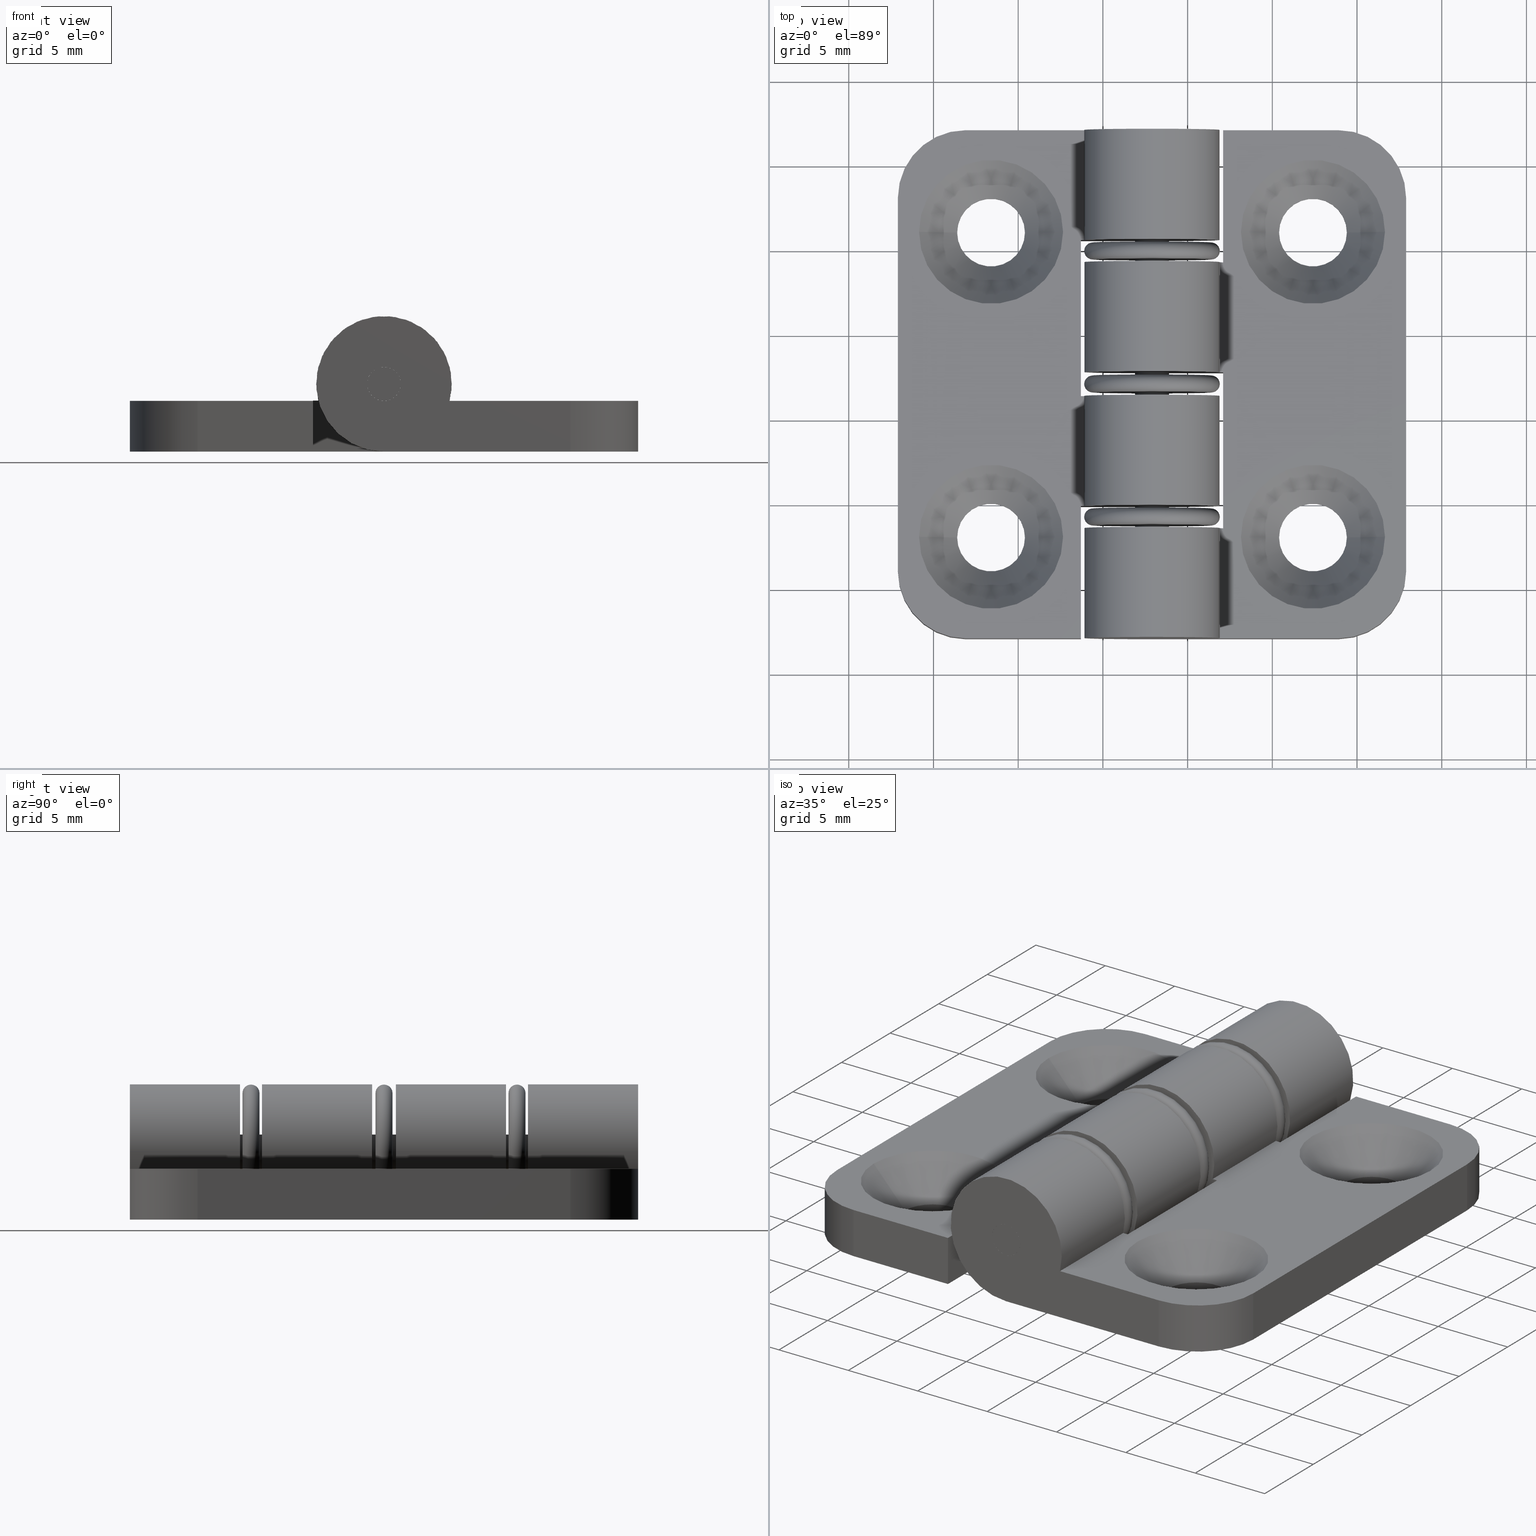
[diagram: canonical four-view strip — front | top / right | iso, engineering-drawing reading convention]
A machine part, canonical four-view strip (front | top / right | iso — engineering-drawing reading convention). The complete STEP part file that produces these views, byte-faithful:
ISO-10303-21;
HEADER;
/* Generated by software containing ST-Developer
 * from STEP Tools, Inc. (www.steptools.com) 
 */

FILE_DESCRIPTION(
/* description */ (''),
/* implementation_level */ '2;1');

FILE_NAME(
/* name */ '\\\\SYNOLOGYNAS\\web\\db2\\HC3030\\\X2\B3C4BA74\X0\\\DR_HC
3030.stp',
/* time_stamp */ '2024-09-06T18:13:24+09:00',
/* author */ ('user'),
/* organization */ (''),
/* preprocessor_version */ 'ST-DEVELOPER v15.6',
/* originating_system */ 'Autodesk Inventor 2015',
/* authorisation */ '');

FILE_SCHEMA (('AUTOMOTIVE_DESIGN { 1 0 10303 214 3 1 1 }'));
ENDSEC;

DATA;
#10=MECHANICAL_DESIGN_GEOMETRIC_PRESENTATION_REPRESENTATION('',(#99,#100,
#101),#821);
#11=ITEM_DEFINED_TRANSFORMATION($,$,#472,#527);
#12=ITEM_DEFINED_TRANSFORMATION($,$,#481,#528);
#13=ITEM_DEFINED_TRANSFORMATION($,$,#472,#529);
#14=ITEM_DEFINED_TRANSFORMATION($,$,#481,#530);
#15=ITEM_DEFINED_TRANSFORMATION($,$,#472,#531);
#16=ITEM_DEFINED_TRANSFORMATION($,$,#520,#532);
#17=(
REPRESENTATION_RELATIONSHIP($,$,#842,#845)
REPRESENTATION_RELATIONSHIP_WITH_TRANSFORMATION(#11)
SHAPE_REPRESENTATION_RELATIONSHIP()
);
#18=(
REPRESENTATION_RELATIONSHIP($,$,#843,#845)
REPRESENTATION_RELATIONSHIP_WITH_TRANSFORMATION(#12)
SHAPE_REPRESENTATION_RELATIONSHIP()
);
#19=(
REPRESENTATION_RELATIONSHIP($,$,#842,#845)
REPRESENTATION_RELATIONSHIP_WITH_TRANSFORMATION(#13)
SHAPE_REPRESENTATION_RELATIONSHIP()
);
#20=(
REPRESENTATION_RELATIONSHIP($,$,#843,#845)
REPRESENTATION_RELATIONSHIP_WITH_TRANSFORMATION(#14)
SHAPE_REPRESENTATION_RELATIONSHIP()
);
#21=(
REPRESENTATION_RELATIONSHIP($,$,#842,#845)
REPRESENTATION_RELATIONSHIP_WITH_TRANSFORMATION(#15)
SHAPE_REPRESENTATION_RELATIONSHIP()
);
#22=(
REPRESENTATION_RELATIONSHIP($,$,#844,#845)
REPRESENTATION_RELATIONSHIP_WITH_TRANSFORMATION(#16)
SHAPE_REPRESENTATION_RELATIONSHIP()
);
#23=CONTEXT_DEPENDENT_SHAPE_REPRESENTATION(#17,#836);
#24=CONTEXT_DEPENDENT_SHAPE_REPRESENTATION(#18,#837);
#25=CONTEXT_DEPENDENT_SHAPE_REPRESENTATION(#19,#838);
#26=CONTEXT_DEPENDENT_SHAPE_REPRESENTATION(#20,#839);
#27=CONTEXT_DEPENDENT_SHAPE_REPRESENTATION(#21,#840);
#28=CONTEXT_DEPENDENT_SHAPE_REPRESENTATION(#22,#841);
#29=NEXT_ASSEMBLY_USAGE_OCCURRENCE('DR_HC3030-\X2\C640C154\X0\:1',$,$,#850,
#847,$);
#30=NEXT_ASSEMBLY_USAGE_OCCURRENCE('DR_HC3030:1',$,$,#850,#848,$);
#31=NEXT_ASSEMBLY_USAGE_OCCURRENCE('DR_HC3030-\X2\C640C154\X0\:2',$,$,#850,
#847,$);
#32=NEXT_ASSEMBLY_USAGE_OCCURRENCE('DR_HC3030:2',$,$,#850,#848,$);
#33=NEXT_ASSEMBLY_USAGE_OCCURRENCE('DR_HC3030-\X2\C640C154\X0\:3',$,$,#850,
#847,$);
#34=NEXT_ASSEMBLY_USAGE_OCCURRENCE('DR_HC3030-\X2\D540\X0\:1',$,$,#850,
#849,$);
#35=CONICAL_SURFACE('',#508,3.125,42.5);
#36=CONICAL_SURFACE('',#512,3.125,42.5);
#37=LINE('',#700,#65);
#38=LINE('',#702,#66);
#39=LINE('',#704,#67);
#40=LINE('',#705,#68);
#41=LINE('',#708,#69);
#42=LINE('',#710,#70);
#43=LINE('',#716,#71);
#44=LINE('',#719,#72);
#45=LINE('',#725,#73);
#46=LINE('',#727,#74);
#47=LINE('',#729,#75);
#48=LINE('',#735,#76);
#49=LINE('',#737,#77);
#50=LINE('',#738,#78);
#51=LINE('',#741,#79);
#52=LINE('',#743,#80);
#53=LINE('',#747,#81);
#54=LINE('',#750,#82);
#55=LINE('',#751,#83);
#56=LINE('',#758,#84);
#57=LINE('',#761,#85);
#58=LINE('',#769,#86);
#59=LINE('',#770,#87);
#60=LINE('',#773,#88);
#61=LINE('',#774,#89);
#62=LINE('',#778,#90);
#63=LINE('',#793,#91);
#64=LINE('',#794,#92);
#65=VECTOR('',#555,9.2);
#66=VECTOR('',#556,3.);
#67=VECTOR('',#557,9.2);
#68=VECTOR('',#558,3.);
#69=VECTOR('',#561,0.327016653792582);
#70=VECTOR('',#562,4.2);
#71=VECTOR('',#569,0.327016653792584);
#72=VECTOR('',#572,4.2);
#73=VECTOR('',#577,0.327016653792582);
#74=VECTOR('',#578,3.);
#75=VECTOR('',#579,4.2);
#76=VECTOR('',#586,7.79999999999999);
#77=VECTOR('',#587,3.);
#78=VECTOR('',#588,7.79999999999999);
#79=VECTOR('',#591,6.5);
#80=VECTOR('',#592,7.12701665379258);
#81=VECTOR('',#595,22.);
#82=VECTOR('',#598,6.8);
#83=VECTOR('',#599,6.5);
#84=VECTOR('',#606,6.5);
#85=VECTOR('',#611,6.5);
#86=VECTOR('',#620,3.);
#87=VECTOR('',#621,3.);
#88=VECTOR('',#624,3.);
#89=VECTOR('',#625,22.);
#90=VECTOR('',#630,3.);
#91=VECTOR('',#651,6.8);
#92=VECTOR('',#652,11.);
#93=SHAPE_REPRESENTATION_RELATIONSHIP('SRR','None',#842,#96);
#94=SHAPE_REPRESENTATION_RELATIONSHIP('SRR','None',#843,#97);
#95=SHAPE_REPRESENTATION_RELATIONSHIP('SRR','None',#844,#98);
#96=ADVANCED_BREP_SHAPE_REPRESENTATION($,(#102),#817);
#97=ADVANCED_BREP_SHAPE_REPRESENTATION($,(#103),#818);
#98=ADVANCED_BREP_SHAPE_REPRESENTATION($,(#104),#819);
#99=STYLED_ITEM('',(#867),#102);
#100=STYLED_ITEM('',(#868),#103);
#101=STYLED_ITEM('',(#869),#104);
#102=MANIFOLD_SOLID_BREP('\X2\C194B9ACB4DC\X0\1',#469);
#103=MANIFOLD_SOLID_BREP('\X2\C194B9ACB4DC\X0\1',#470);
#104=MANIFOLD_SOLID_BREP('\X2\C194B9ACB4DC\X0\1',#471);
#105=CYLINDRICAL_SURFACE('',#480,1.);
#106=CYLINDRICAL_SURFACE('',#498,4.);
#107=CYLINDRICAL_SURFACE('',#500,4.);
#108=CYLINDRICAL_SURFACE('',#501,1.);
#109=CYLINDRICAL_SURFACE('',#503,4.);
#110=CYLINDRICAL_SURFACE('',#506,4.);
#111=CYLINDRICAL_SURFACE('',#510,2.);
#112=CYLINDRICAL_SURFACE('',#514,2.);
#113=CYLINDRICAL_SURFACE('',#516,1.);
#114=CYLINDRICAL_SURFACE('',#523,1.);
#115=TOROIDAL_SURFACE('',#476,3.5,0.5);
#116=FACE_BOUND('',#163,.T.);
#117=FACE_BOUND('',#165,.T.);
#118=FACE_BOUND('',#167,.T.);
#119=FACE_BOUND('',#169,.T.);
#120=FACE_BOUND('',#172,.T.);
#121=FACE_BOUND('',#174,.T.);
#122=FACE_BOUND('',#176,.T.);
#123=FACE_BOUND('',#179,.T.);
#124=FACE_BOUND('',#180,.T.);
#125=FACE_BOUND('',#184,.T.);
#126=FACE_BOUND('',#189,.T.);
#127=FACE_BOUND('',#191,.T.);
#128=FACE_BOUND('',#193,.T.);
#129=FACE_BOUND('',#195,.T.);
#130=FACE_BOUND('',#197,.T.);
#131=FACE_BOUND('',#199,.T.);
#132=FACE_BOUND('',#200,.T.);
#133=FACE_BOUND('',#203,.T.);
#134=FACE_BOUND('',#206,.T.);
#135=FACE_OUTER_BOUND('',#162,.T.);
#136=FACE_OUTER_BOUND('',#164,.T.);
#137=FACE_OUTER_BOUND('',#166,.T.);
#138=FACE_OUTER_BOUND('',#168,.T.);
#139=FACE_OUTER_BOUND('',#170,.T.);
#140=FACE_OUTER_BOUND('',#171,.T.);
#141=FACE_OUTER_BOUND('',#173,.T.);
#142=FACE_OUTER_BOUND('',#175,.T.);
#143=FACE_OUTER_BOUND('',#177,.T.);
#144=FACE_OUTER_BOUND('',#178,.T.);
#145=FACE_OUTER_BOUND('',#181,.T.);
#146=FACE_OUTER_BOUND('',#182,.T.);
#147=FACE_OUTER_BOUND('',#183,.T.);
#148=FACE_OUTER_BOUND('',#185,.T.);
#149=FACE_OUTER_BOUND('',#186,.T.);
#150=FACE_OUTER_BOUND('',#187,.T.);
#151=FACE_OUTER_BOUND('',#188,.T.);
#152=FACE_OUTER_BOUND('',#190,.T.);
#153=FACE_OUTER_BOUND('',#192,.T.);
#154=FACE_OUTER_BOUND('',#194,.T.);
#155=FACE_OUTER_BOUND('',#196,.T.);
#156=FACE_OUTER_BOUND('',#198,.T.);
#157=FACE_OUTER_BOUND('',#201,.T.);
#158=FACE_OUTER_BOUND('',#202,.T.);
#159=FACE_OUTER_BOUND('',#204,.T.);
#160=FACE_OUTER_BOUND('',#205,.T.);
#161=FACE_OUTER_BOUND('',#207,.T.);
#162=EDGE_LOOP('',(#324));
#163=EDGE_LOOP('',(#325));
#164=EDGE_LOOP('',(#326));
#165=EDGE_LOOP('',(#327));
#166=EDGE_LOOP('',(#328));
#167=EDGE_LOOP('',(#329));
#168=EDGE_LOOP('',(#330));
#169=EDGE_LOOP('',(#331));
#170=EDGE_LOOP('',(#332,#333,#334,#335));
#171=EDGE_LOOP('',(#336,#337,#338,#339));
#172=EDGE_LOOP('',(#340));
#173=EDGE_LOOP('',(#341,#342,#343,#344));
#174=EDGE_LOOP('',(#345));
#175=EDGE_LOOP('',(#346,#347,#348,#349));
#176=EDGE_LOOP('',(#350));
#177=EDGE_LOOP('',(#351,#352,#353,#354));
#178=EDGE_LOOP('',(#355,#356,#357,#358,#359,#360,#361,#362,#363,#364,#365,
#366));
#179=EDGE_LOOP('',(#367));
#180=EDGE_LOOP('',(#368));
#181=EDGE_LOOP('',(#369,#370,#371,#372));
#182=EDGE_LOOP('',(#373,#374,#375,#376));
#183=EDGE_LOOP('',(#377));
#184=EDGE_LOOP('',(#378));
#185=EDGE_LOOP('',(#379,#380,#381,#382));
#186=EDGE_LOOP('',(#383,#384,#385,#386));
#187=EDGE_LOOP('',(#387,#388,#389,#390));
#188=EDGE_LOOP('',(#391));
#189=EDGE_LOOP('',(#392));
#190=EDGE_LOOP('',(#393));
#191=EDGE_LOOP('',(#394));
#192=EDGE_LOOP('',(#395));
#193=EDGE_LOOP('',(#396));
#194=EDGE_LOOP('',(#397));
#195=EDGE_LOOP('',(#398));
#196=EDGE_LOOP('',(#399));
#197=EDGE_LOOP('',(#400));
#198=EDGE_LOOP('',(#401,#402,#403,#404,#405,#406,#407,#408,#409,#410,#411,
#412));
#199=EDGE_LOOP('',(#413));
#200=EDGE_LOOP('',(#414));
#201=EDGE_LOOP('',(#415,#416,#417,#418));
#202=EDGE_LOOP('',(#419,#420,#421,#422));
#203=EDGE_LOOP('',(#423));
#204=EDGE_LOOP('',(#424));
#205=EDGE_LOOP('',(#425));
#206=EDGE_LOOP('',(#426));
#207=EDGE_LOOP('',(#427));
#208=CIRCLE('',#474,3.5);
#209=CIRCLE('',#475,1.);
#210=CIRCLE('',#477,3.5);
#211=CIRCLE('',#479,1.);
#212=CIRCLE('',#484,4.);
#213=CIRCLE('',#485,1.);
#214=CIRCLE('',#487,4.);
#215=CIRCLE('',#488,1.);
#216=CIRCLE('',#490,4.);
#217=CIRCLE('',#491,1.);
#218=CIRCLE('',#494,4.);
#219=CIRCLE('',#495,4.);
#220=CIRCLE('',#496,4.25);
#221=CIRCLE('',#497,4.25);
#222=CIRCLE('',#499,4.);
#223=CIRCLE('',#502,1.);
#224=CIRCLE('',#504,4.);
#225=CIRCLE('',#507,4.);
#226=CIRCLE('',#509,2.);
#227=CIRCLE('',#511,2.);
#228=CIRCLE('',#513,2.);
#229=CIRCLE('',#515,2.);
#230=CIRCLE('',#522,1.);
#231=CIRCLE('',#524,1.);
#232=VERTEX_POINT('',#685);
#233=VERTEX_POINT('',#687);
#234=VERTEX_POINT('',#690);
#235=VERTEX_POINT('',#693);
#236=VERTEX_POINT('',#698);
#237=VERTEX_POINT('',#699);
#238=VERTEX_POINT('',#701);
#239=VERTEX_POINT('',#703);
#240=VERTEX_POINT('',#707);
#241=VERTEX_POINT('',#709);
#242=VERTEX_POINT('',#712);
#243=VERTEX_POINT('',#715);
#244=VERTEX_POINT('',#717);
#245=VERTEX_POINT('',#720);
#246=VERTEX_POINT('',#723);
#247=VERTEX_POINT('',#724);
#248=VERTEX_POINT('',#726);
#249=VERTEX_POINT('',#728);
#250=VERTEX_POINT('',#731);
#251=VERTEX_POINT('',#734);
#252=VERTEX_POINT('',#736);
#253=VERTEX_POINT('',#740);
#254=VERTEX_POINT('',#742);
#255=VERTEX_POINT('',#744);
#256=VERTEX_POINT('',#746);
#257=VERTEX_POINT('',#748);
#258=VERTEX_POINT('',#752);
#259=VERTEX_POINT('',#754);
#260=VERTEX_POINT('',#757);
#261=VERTEX_POINT('',#763);
#262=VERTEX_POINT('',#766);
#263=VERTEX_POINT('',#767);
#264=VERTEX_POINT('',#772);
#265=VERTEX_POINT('',#776);
#266=VERTEX_POINT('',#780);
#267=VERTEX_POINT('',#783);
#268=VERTEX_POINT('',#786);
#269=VERTEX_POINT('',#789);
#270=VERTEX_POINT('',#799);
#271=VERTEX_POINT('',#802);
#272=EDGE_CURVE('',#232,#232,#208,.T.);
#273=EDGE_CURVE('',#233,#233,#209,.T.);
#274=EDGE_CURVE('',#234,#234,#210,.T.);
#275=EDGE_CURVE('',#235,#235,#211,.T.);
#276=EDGE_CURVE('',#236,#237,#37,.T.);
#277=EDGE_CURVE('',#238,#236,#38,.T.);
#278=EDGE_CURVE('',#239,#238,#39,.T.);
#279=EDGE_CURVE('',#237,#239,#40,.T.);
#280=EDGE_CURVE('',#237,#240,#41,.T.);
#281=EDGE_CURVE('',#241,#239,#42,.T.);
#282=EDGE_CURVE('',#240,#241,#212,.T.);
#283=EDGE_CURVE('',#242,#242,#213,.T.);
#284=EDGE_CURVE('',#243,#236,#43,.T.);
#285=EDGE_CURVE('',#244,#243,#214,.T.);
#286=EDGE_CURVE('',#238,#244,#44,.T.);
#287=EDGE_CURVE('',#245,#245,#215,.T.);
#288=EDGE_CURVE('',#246,#247,#45,.T.);
#289=EDGE_CURVE('',#246,#248,#46,.T.);
#290=EDGE_CURVE('',#249,#248,#47,.T.);
#291=EDGE_CURVE('',#247,#249,#216,.T.);
#292=EDGE_CURVE('',#250,#250,#217,.T.);
#293=EDGE_CURVE('',#251,#246,#48,.T.);
#294=EDGE_CURVE('',#252,#251,#49,.T.);
#295=EDGE_CURVE('',#248,#252,#50,.T.);
#296=EDGE_CURVE('',#253,#240,#51,.T.);
#297=EDGE_CURVE('',#253,#254,#52,.T.);
#298=EDGE_CURVE('',#255,#254,#218,.T.);
#299=EDGE_CURVE('',#255,#256,#53,.T.);
#300=EDGE_CURVE('',#257,#256,#219,.T.);
#301=EDGE_CURVE('',#251,#257,#54,.T.);
#302=EDGE_CURVE('',#243,#247,#55,.T.);
#303=EDGE_CURVE('',#258,#258,#220,.T.);
#304=EDGE_CURVE('',#259,#259,#221,.T.);
#305=EDGE_CURVE('',#260,#241,#56,.T.);
#306=EDGE_CURVE('',#260,#253,#222,.T.);
#307=EDGE_CURVE('',#244,#249,#57,.T.);
#308=EDGE_CURVE('',#261,#261,#223,.T.);
#309=EDGE_CURVE('',#262,#263,#224,.T.);
#310=EDGE_CURVE('',#263,#257,#58,.T.);
#311=EDGE_CURVE('',#256,#262,#59,.T.);
#312=EDGE_CURVE('',#264,#255,#60,.T.);
#313=EDGE_CURVE('',#264,#262,#61,.T.);
#314=EDGE_CURVE('',#265,#264,#225,.T.);
#315=EDGE_CURVE('',#254,#265,#62,.T.);
#316=EDGE_CURVE('',#266,#266,#226,.T.);
#317=EDGE_CURVE('',#267,#267,#227,.T.);
#318=EDGE_CURVE('',#268,#268,#228,.T.);
#319=EDGE_CURVE('',#269,#269,#229,.T.);
#320=EDGE_CURVE('',#263,#252,#63,.T.);
#321=EDGE_CURVE('',#265,#260,#64,.T.);
#322=EDGE_CURVE('',#270,#270,#230,.T.);
#323=EDGE_CURVE('',#271,#271,#231,.T.);
#324=ORIENTED_EDGE('',*,*,#272,.F.);
#325=ORIENTED_EDGE('',*,*,#273,.T.);
#326=ORIENTED_EDGE('',*,*,#272,.T.);
#327=ORIENTED_EDGE('',*,*,#274,.T.);
#328=ORIENTED_EDGE('',*,*,#274,.F.);
#329=ORIENTED_EDGE('',*,*,#275,.T.);
#330=ORIENTED_EDGE('',*,*,#275,.F.);
#331=ORIENTED_EDGE('',*,*,#273,.F.);
#332=ORIENTED_EDGE('',*,*,#276,.F.);
#333=ORIENTED_EDGE('',*,*,#277,.F.);
#334=ORIENTED_EDGE('',*,*,#278,.F.);
#335=ORIENTED_EDGE('',*,*,#279,.F.);
#336=ORIENTED_EDGE('',*,*,#280,.F.);
#337=ORIENTED_EDGE('',*,*,#279,.T.);
#338=ORIENTED_EDGE('',*,*,#281,.F.);
#339=ORIENTED_EDGE('',*,*,#282,.F.);
#340=ORIENTED_EDGE('',*,*,#283,.F.);
#341=ORIENTED_EDGE('',*,*,#284,.F.);
#342=ORIENTED_EDGE('',*,*,#285,.F.);
#343=ORIENTED_EDGE('',*,*,#286,.F.);
#344=ORIENTED_EDGE('',*,*,#277,.T.);
#345=ORIENTED_EDGE('',*,*,#287,.F.);
#346=ORIENTED_EDGE('',*,*,#288,.F.);
#347=ORIENTED_EDGE('',*,*,#289,.T.);
#348=ORIENTED_EDGE('',*,*,#290,.F.);
#349=ORIENTED_EDGE('',*,*,#291,.F.);
#350=ORIENTED_EDGE('',*,*,#292,.F.);
#351=ORIENTED_EDGE('',*,*,#293,.F.);
#352=ORIENTED_EDGE('',*,*,#294,.F.);
#353=ORIENTED_EDGE('',*,*,#295,.F.);
#354=ORIENTED_EDGE('',*,*,#289,.F.);
#355=ORIENTED_EDGE('',*,*,#284,.T.);
#356=ORIENTED_EDGE('',*,*,#276,.T.);
#357=ORIENTED_EDGE('',*,*,#280,.T.);
#358=ORIENTED_EDGE('',*,*,#296,.F.);
#359=ORIENTED_EDGE('',*,*,#297,.T.);
#360=ORIENTED_EDGE('',*,*,#298,.F.);
#361=ORIENTED_EDGE('',*,*,#299,.T.);
#362=ORIENTED_EDGE('',*,*,#300,.F.);
#363=ORIENTED_EDGE('',*,*,#301,.F.);
#364=ORIENTED_EDGE('',*,*,#293,.T.);
#365=ORIENTED_EDGE('',*,*,#288,.T.);
#366=ORIENTED_EDGE('',*,*,#302,.F.);
#367=ORIENTED_EDGE('',*,*,#303,.T.);
#368=ORIENTED_EDGE('',*,*,#304,.T.);
#369=ORIENTED_EDGE('',*,*,#282,.T.);
#370=ORIENTED_EDGE('',*,*,#305,.F.);
#371=ORIENTED_EDGE('',*,*,#306,.T.);
#372=ORIENTED_EDGE('',*,*,#296,.T.);
#373=ORIENTED_EDGE('',*,*,#285,.T.);
#374=ORIENTED_EDGE('',*,*,#302,.T.);
#375=ORIENTED_EDGE('',*,*,#291,.T.);
#376=ORIENTED_EDGE('',*,*,#307,.F.);
#377=ORIENTED_EDGE('',*,*,#308,.F.);
#378=ORIENTED_EDGE('',*,*,#283,.T.);
#379=ORIENTED_EDGE('',*,*,#309,.T.);
#380=ORIENTED_EDGE('',*,*,#310,.T.);
#381=ORIENTED_EDGE('',*,*,#300,.T.);
#382=ORIENTED_EDGE('',*,*,#311,.T.);
#383=ORIENTED_EDGE('',*,*,#311,.F.);
#384=ORIENTED_EDGE('',*,*,#299,.F.);
#385=ORIENTED_EDGE('',*,*,#312,.F.);
#386=ORIENTED_EDGE('',*,*,#313,.T.);
#387=ORIENTED_EDGE('',*,*,#314,.T.);
#388=ORIENTED_EDGE('',*,*,#312,.T.);
#389=ORIENTED_EDGE('',*,*,#298,.T.);
#390=ORIENTED_EDGE('',*,*,#315,.T.);
#391=ORIENTED_EDGE('',*,*,#304,.F.);
#392=ORIENTED_EDGE('',*,*,#316,.F.);
#393=ORIENTED_EDGE('',*,*,#317,.F.);
#394=ORIENTED_EDGE('',*,*,#316,.T.);
#395=ORIENTED_EDGE('',*,*,#303,.F.);
#396=ORIENTED_EDGE('',*,*,#318,.F.);
#397=ORIENTED_EDGE('',*,*,#319,.F.);
#398=ORIENTED_EDGE('',*,*,#318,.T.);
#399=ORIENTED_EDGE('',*,*,#287,.T.);
#400=ORIENTED_EDGE('',*,*,#292,.T.);
#401=ORIENTED_EDGE('',*,*,#286,.T.);
#402=ORIENTED_EDGE('',*,*,#307,.T.);
#403=ORIENTED_EDGE('',*,*,#290,.T.);
#404=ORIENTED_EDGE('',*,*,#295,.T.);
#405=ORIENTED_EDGE('',*,*,#320,.F.);
#406=ORIENTED_EDGE('',*,*,#309,.F.);
#407=ORIENTED_EDGE('',*,*,#313,.F.);
#408=ORIENTED_EDGE('',*,*,#314,.F.);
#409=ORIENTED_EDGE('',*,*,#321,.T.);
#410=ORIENTED_EDGE('',*,*,#305,.T.);
#411=ORIENTED_EDGE('',*,*,#281,.T.);
#412=ORIENTED_EDGE('',*,*,#278,.T.);
#413=ORIENTED_EDGE('',*,*,#317,.T.);
#414=ORIENTED_EDGE('',*,*,#319,.T.);
#415=ORIENTED_EDGE('',*,*,#294,.T.);
#416=ORIENTED_EDGE('',*,*,#301,.T.);
#417=ORIENTED_EDGE('',*,*,#310,.F.);
#418=ORIENTED_EDGE('',*,*,#320,.T.);
#419=ORIENTED_EDGE('',*,*,#315,.F.);
#420=ORIENTED_EDGE('',*,*,#297,.F.);
#421=ORIENTED_EDGE('',*,*,#306,.F.);
#422=ORIENTED_EDGE('',*,*,#321,.F.);
#423=ORIENTED_EDGE('',*,*,#308,.T.);
#424=ORIENTED_EDGE('',*,*,#322,.F.);
#425=ORIENTED_EDGE('',*,*,#323,.F.);
#426=ORIENTED_EDGE('',*,*,#322,.T.);
#427=ORIENTED_EDGE('',*,*,#323,.T.);
#428=PLANE('',#473);
#429=PLANE('',#478);
#430=PLANE('',#482);
#431=PLANE('',#483);
#432=PLANE('',#486);
#433=PLANE('',#489);
#434=PLANE('',#492);
#435=PLANE('',#493);
#436=PLANE('',#505);
#437=PLANE('',#517);
#438=PLANE('',#518);
#439=PLANE('',#519);
#440=PLANE('',#521);
#441=PLANE('',#525);
#442=ADVANCED_FACE('',(#135,#116),#428,.F.);
#443=ADVANCED_FACE('',(#136,#117),#115,.T.);
#444=ADVANCED_FACE('',(#137,#118),#429,.T.);
#445=ADVANCED_FACE('',(#138,#119),#105,.F.);
#446=ADVANCED_FACE('',(#139),#430,.F.);
#447=ADVANCED_FACE('',(#140,#120),#431,.F.);
#448=ADVANCED_FACE('',(#141,#121),#432,.T.);
#449=ADVANCED_FACE('',(#142,#122),#433,.T.);
#450=ADVANCED_FACE('',(#143),#434,.F.);
#451=ADVANCED_FACE('',(#144,#123,#124),#435,.T.);
#452=ADVANCED_FACE('',(#145),#106,.T.);
#453=ADVANCED_FACE('',(#146),#107,.T.);
#454=ADVANCED_FACE('',(#147,#125),#108,.F.);
#455=ADVANCED_FACE('',(#148),#109,.T.);
#456=ADVANCED_FACE('',(#149),#436,.T.);
#457=ADVANCED_FACE('',(#150),#110,.T.);
#458=ADVANCED_FACE('',(#151,#126),#35,.F.);
#459=ADVANCED_FACE('',(#152,#127),#111,.F.);
#460=ADVANCED_FACE('',(#153,#128),#36,.F.);
#461=ADVANCED_FACE('',(#154,#129),#112,.F.);
#462=ADVANCED_FACE('',(#155,#130),#113,.F.);
#463=ADVANCED_FACE('',(#156,#131,#132),#437,.T.);
#464=ADVANCED_FACE('',(#157),#438,.T.);
#465=ADVANCED_FACE('',(#158,#133),#439,.F.);
#466=ADVANCED_FACE('',(#159),#440,.T.);
#467=ADVANCED_FACE('',(#160,#134),#114,.T.);
#468=ADVANCED_FACE('',(#161),#441,.T.);
#469=CLOSED_SHELL('',(#442,#443,#444,#445));
#470=CLOSED_SHELL('',(#446,#447,#448,#449,#450,#451,#452,#453,#454,#455,
#456,#457,#458,#459,#460,#461,#462,#463,#464,#465));
#471=CLOSED_SHELL('',(#466,#467,#468));
#472=AXIS2_PLACEMENT_3D('placement',#683,#533,#534);
#473=AXIS2_PLACEMENT_3D('',#684,#535,#536);
#474=AXIS2_PLACEMENT_3D('',#686,#537,#538);
#475=AXIS2_PLACEMENT_3D('',#688,#539,#540);
#476=AXIS2_PLACEMENT_3D('',#689,#541,#542);
#477=AXIS2_PLACEMENT_3D('',#691,#543,#544);
#478=AXIS2_PLACEMENT_3D('',#692,#545,#546);
#479=AXIS2_PLACEMENT_3D('',#694,#547,#548);
#480=AXIS2_PLACEMENT_3D('',#695,#549,#550);
#481=AXIS2_PLACEMENT_3D('placement',#696,#551,#552);
#482=AXIS2_PLACEMENT_3D('',#697,#553,#554);
#483=AXIS2_PLACEMENT_3D('',#706,#559,#560);
#484=AXIS2_PLACEMENT_3D('',#711,#563,#564);
#485=AXIS2_PLACEMENT_3D('',#713,#565,#566);
#486=AXIS2_PLACEMENT_3D('',#714,#567,#568);
#487=AXIS2_PLACEMENT_3D('',#718,#570,#571);
#488=AXIS2_PLACEMENT_3D('',#721,#573,#574);
#489=AXIS2_PLACEMENT_3D('',#722,#575,#576);
#490=AXIS2_PLACEMENT_3D('',#730,#580,#581);
#491=AXIS2_PLACEMENT_3D('',#732,#582,#583);
#492=AXIS2_PLACEMENT_3D('',#733,#584,#585);
#493=AXIS2_PLACEMENT_3D('',#739,#589,#590);
#494=AXIS2_PLACEMENT_3D('',#745,#593,#594);
#495=AXIS2_PLACEMENT_3D('',#749,#596,#597);
#496=AXIS2_PLACEMENT_3D('',#753,#600,#601);
#497=AXIS2_PLACEMENT_3D('',#755,#602,#603);
#498=AXIS2_PLACEMENT_3D('',#756,#604,#605);
#499=AXIS2_PLACEMENT_3D('',#759,#607,#608);
#500=AXIS2_PLACEMENT_3D('',#760,#609,#610);
#501=AXIS2_PLACEMENT_3D('',#762,#612,#613);
#502=AXIS2_PLACEMENT_3D('',#764,#614,#615);
#503=AXIS2_PLACEMENT_3D('',#765,#616,#617);
#504=AXIS2_PLACEMENT_3D('',#768,#618,#619);
#505=AXIS2_PLACEMENT_3D('',#771,#622,#623);
#506=AXIS2_PLACEMENT_3D('',#775,#626,#627);
#507=AXIS2_PLACEMENT_3D('',#777,#628,#629);
#508=AXIS2_PLACEMENT_3D('',#779,#631,#632);
#509=AXIS2_PLACEMENT_3D('',#781,#633,#634);
#510=AXIS2_PLACEMENT_3D('',#782,#635,#636);
#511=AXIS2_PLACEMENT_3D('',#784,#637,#638);
#512=AXIS2_PLACEMENT_3D('',#785,#639,#640);
#513=AXIS2_PLACEMENT_3D('',#787,#641,#642);
#514=AXIS2_PLACEMENT_3D('',#788,#643,#644);
#515=AXIS2_PLACEMENT_3D('',#790,#645,#646);
#516=AXIS2_PLACEMENT_3D('',#791,#647,#648);
#517=AXIS2_PLACEMENT_3D('',#792,#649,#650);
#518=AXIS2_PLACEMENT_3D('',#795,#653,#654);
#519=AXIS2_PLACEMENT_3D('',#796,#655,#656);
#520=AXIS2_PLACEMENT_3D('placement',#797,#657,#658);
#521=AXIS2_PLACEMENT_3D('',#798,#659,#660);
#522=AXIS2_PLACEMENT_3D('',#800,#661,#662);
#523=AXIS2_PLACEMENT_3D('',#801,#663,#664);
#524=AXIS2_PLACEMENT_3D('',#803,#665,#666);
#525=AXIS2_PLACEMENT_3D('',#804,#667,#668);
#526=AXIS2_PLACEMENT_3D('placement',#805,#669,#670);
#527=AXIS2_PLACEMENT_3D('',#806,#671,#672);
#528=AXIS2_PLACEMENT_3D('',#807,#673,#674);
#529=AXIS2_PLACEMENT_3D('',#808,#675,#676);
#530=AXIS2_PLACEMENT_3D('',#809,#677,#678);
#531=AXIS2_PLACEMENT_3D('',#810,#679,#680);
#532=AXIS2_PLACEMENT_3D('',#811,#681,#682);
#533=DIRECTION('axis',(0.,0.,1.));
#534=DIRECTION('refdir',(1.,0.,0.));
#535=DIRECTION('center_axis',(0.,1.,0.));
#536=DIRECTION('ref_axis',(0.,0.,1.));
#537=DIRECTION('center_axis',(0.,1.,0.));
#538=DIRECTION('ref_axis',(1.,0.,0.));
#539=DIRECTION('center_axis',(0.,1.,0.));
#540=DIRECTION('ref_axis',(1.,0.,0.));
#541=DIRECTION('center_axis',(0.,1.,0.));
#542=DIRECTION('ref_axis',(0.,0.,1.));
#543=DIRECTION('center_axis',(0.,-1.,0.));
#544=DIRECTION('ref_axis',(1.,0.,0.));
#545=DIRECTION('center_axis',(0.,1.,0.));
#546=DIRECTION('ref_axis',(0.,0.,1.));
#547=DIRECTION('center_axis',(0.,-1.,0.));
#548=DIRECTION('ref_axis',(1.,0.,0.));
#549=DIRECTION('center_axis',(0.,1.,0.));
#550=DIRECTION('ref_axis',(1.,0.,0.));
#551=DIRECTION('axis',(0.,0.,1.));
#552=DIRECTION('refdir',(1.,0.,0.));
#553=DIRECTION('center_axis',(1.,1.70803542250024E-16,0.));
#554=DIRECTION('ref_axis',(1.77635683940025E-16,-1.,0.));
#555=DIRECTION('',(1.70803542250024E-16,-1.,0.));
#556=DIRECTION('',(0.,0.,1.));
#557=DIRECTION('',(-1.70803542250024E-16,1.,0.));
#558=DIRECTION('',(0.,0.,-1.));
#559=DIRECTION('center_axis',(0.,-1.,0.));
#560=DIRECTION('ref_axis',(-1.,0.,0.));
#561=DIRECTION('',(-1.,0.,0.));
#562=DIRECTION('',(1.,0.,0.));
#563=DIRECTION('center_axis',(0.,-1.,0.));
#564=DIRECTION('ref_axis',(0.,0.,-1.));
#565=DIRECTION('center_axis',(0.,1.,0.));
#566=DIRECTION('ref_axis',(1.,0.,0.));
#567=DIRECTION('center_axis',(-2.70786103567111E-16,-1.,0.));
#568=DIRECTION('ref_axis',(-1.,3.5527136788005E-16,0.));
#569=DIRECTION('',(1.,-2.70786103567111E-16,0.));
#570=DIRECTION('center_axis',(2.70786103567111E-16,1.,0.));
#571=DIRECTION('ref_axis',(0.,0.,-1.));
#572=DIRECTION('',(-1.,2.70786103567111E-16,0.));
#573=DIRECTION('center_axis',(-2.70786103567111E-16,-1.,0.));
#574=DIRECTION('ref_axis',(1.,0.,0.));
#575=DIRECTION('center_axis',(0.,1.,0.));
#576=DIRECTION('ref_axis',(1.,0.,0.));
#577=DIRECTION('',(-1.,0.,0.));
#578=DIRECTION('',(0.,0.,-1.));
#579=DIRECTION('',(1.,0.,0.));
#580=DIRECTION('center_axis',(0.,-1.,0.));
#581=DIRECTION('ref_axis',(0.,0.,-1.));
#582=DIRECTION('center_axis',(0.,1.,0.));
#583=DIRECTION('ref_axis',(1.,0.,0.));
#584=DIRECTION('center_axis',(1.,1.70803542250024E-16,0.));
#585=DIRECTION('ref_axis',(1.77635683940025E-16,-1.,0.));
#586=DIRECTION('',(1.70803542250024E-16,-1.,0.));
#587=DIRECTION('',(0.,0.,1.));
#588=DIRECTION('',(-1.70803542250024E-16,1.,0.));
#589=DIRECTION('center_axis',(0.,0.,1.));
#590=DIRECTION('ref_axis',(1.,0.,0.));
#591=DIRECTION('',(0.,1.,0.));
#592=DIRECTION('',(1.,0.,0.));
#593=DIRECTION('center_axis',(0.,0.,-1.));
#594=DIRECTION('ref_axis',(0.707106781186548,-0.707106781186548,0.));
#595=DIRECTION('',(0.,1.,0.));
#596=DIRECTION('center_axis',(0.,0.,-1.));
#597=DIRECTION('ref_axis',(0.707106781186548,0.707106781186547,0.));
#598=DIRECTION('',(1.,0.,0.));
#599=DIRECTION('',(0.,1.,0.));
#600=DIRECTION('center_axis',(0.,0.,-1.));
#601=DIRECTION('ref_axis',(1.,0.,0.));
#602=DIRECTION('center_axis',(0.,0.,-1.));
#603=DIRECTION('ref_axis',(1.,0.,0.));
#604=DIRECTION('center_axis',(0.,1.,0.));
#605=DIRECTION('ref_axis',(0.,0.,-1.));
#606=DIRECTION('',(0.,1.,0.));
#607=DIRECTION('center_axis',(0.,1.,0.));
#608=DIRECTION('ref_axis',(0.,0.,-1.));
#609=DIRECTION('center_axis',(0.,1.,0.));
#610=DIRECTION('ref_axis',(0.,0.,-1.));
#611=DIRECTION('',(0.,1.,0.));
#612=DIRECTION('center_axis',(0.,1.,0.));
#613=DIRECTION('ref_axis',(1.,0.,0.));
#614=DIRECTION('center_axis',(0.,1.,0.));
#615=DIRECTION('ref_axis',(1.,0.,0.));
#616=DIRECTION('center_axis',(0.,0.,-1.));
#617=DIRECTION('ref_axis',(0.707106781186548,0.707106781186547,0.));
#618=DIRECTION('center_axis',(0.,0.,1.));
#619=DIRECTION('ref_axis',(0.707106781186548,0.707106781186547,0.));
#620=DIRECTION('',(0.,0.,1.));
#621=DIRECTION('',(0.,0.,-1.));
#622=DIRECTION('center_axis',(1.,0.,0.));
#623=DIRECTION('ref_axis',(0.,0.,-1.));
#624=DIRECTION('',(0.,0.,1.));
#625=DIRECTION('',(0.,1.,0.));
#626=DIRECTION('center_axis',(0.,0.,-1.));
#627=DIRECTION('ref_axis',(0.707106781186548,-0.707106781186548,0.));
#628=DIRECTION('center_axis',(0.,0.,1.));
#629=DIRECTION('ref_axis',(0.707106781186548,-0.707106781186548,0.));
#630=DIRECTION('',(0.,0.,-1.));
#631=DIRECTION('center_axis',(0.,0.,1.));
#632=DIRECTION('ref_axis',(1.,0.,0.));
#633=DIRECTION('center_axis',(0.,0.,1.));
#634=DIRECTION('ref_axis',(1.,0.,0.));
#635=DIRECTION('center_axis',(0.,0.,1.));
#636=DIRECTION('ref_axis',(1.,0.,0.));
#637=DIRECTION('center_axis',(0.,0.,1.));
#638=DIRECTION('ref_axis',(1.,0.,0.));
#639=DIRECTION('center_axis',(0.,0.,1.));
#640=DIRECTION('ref_axis',(1.,0.,0.));
#641=DIRECTION('center_axis',(0.,0.,1.));
#642=DIRECTION('ref_axis',(1.,0.,0.));
#643=DIRECTION('center_axis',(0.,0.,1.));
#644=DIRECTION('ref_axis',(1.,0.,0.));
#645=DIRECTION('center_axis',(0.,0.,1.));
#646=DIRECTION('ref_axis',(1.,0.,0.));
#647=DIRECTION('center_axis',(0.,1.,0.));
#648=DIRECTION('ref_axis',(1.,0.,0.));
#649=DIRECTION('center_axis',(0.,0.,-1.));
#650=DIRECTION('ref_axis',(-1.,0.,0.));
#651=DIRECTION('',(-1.,0.,0.));
#652=DIRECTION('',(-1.,0.,0.));
#653=DIRECTION('center_axis',(0.,1.,0.));
#654=DIRECTION('ref_axis',(0.,0.,1.));
#655=DIRECTION('center_axis',(0.,1.,0.));
#656=DIRECTION('ref_axis',(0.,0.,1.));
#657=DIRECTION('axis',(0.,0.,1.));
#658=DIRECTION('refdir',(1.,0.,0.));
#659=DIRECTION('center_axis',(1.,0.,0.));
#660=DIRECTION('ref_axis',(0.,0.,-1.));
#661=DIRECTION('center_axis',(-1.,0.,0.));
#662=DIRECTION('ref_axis',(0.,0.,1.));
#663=DIRECTION('center_axis',(-1.,0.,0.));
#664=DIRECTION('ref_axis',(0.,0.,1.));
#665=DIRECTION('center_axis',(-1.,0.,0.));
#666=DIRECTION('ref_axis',(0.,0.,1.));
#667=DIRECTION('center_axis',(-1.,0.,0.));
#668=DIRECTION('ref_axis',(0.,0.,1.));
#669=DIRECTION('axis',(0.,0.,1.));
#670=DIRECTION('refdir',(1.,0.,0.));
#671=DIRECTION('',(-1.66533453693774E-16,-3.14896408123938E-15,1.));
#672=DIRECTION('',(1.,6.07153216591883E-17,1.66533453693774E-16));
#673=DIRECTION('',(-4.62303806347814E-16,-3.37613770317956E-15,1.));
#674=DIRECTION('',(1.,-1.81720809831677E-16,4.62303806347813E-16));
#675=DIRECTION('',(1.66533453693774E-16,3.14896408123939E-15,-1.));
#676=DIRECTION('',(1.,-7.51000832001705E-16,1.66533453693772E-16));
#677=DIRECTION('',(-6.40642851682085E-15,-4.76024550296883E-15,1.));
#678=DIRECTION('',(-1.,3.39674492346135E-16,-6.40642851682085E-15));
#679=DIRECTION('',(-1.66533453693776E-16,-3.14896408123938E-15,1.));
#680=DIRECTION('',(1.,6.07153216591883E-17,1.66533453693776E-16));
#681=DIRECTION('',(2.21801078390444E-15,3.14896408123939E-15,-1.));
#682=DIRECTION('',(2.59783366250642E-16,1.,3.14896408123939E-15));
#683=CARTESIAN_POINT('',(0.,0.,0.));
#684=CARTESIAN_POINT('Origin',(2.72118023435153E-16,0.,0.));
#685=CARTESIAN_POINT('',(-3.5,0.,4.28626379701574E-16));
#686=CARTESIAN_POINT('Origin',(0.,0.,0.));
#687=CARTESIAN_POINT('',(-1.,0.,1.22464679914735E-16));
#688=CARTESIAN_POINT('Origin',(0.,0.,0.));
#689=CARTESIAN_POINT('Origin',(0.,0.5,0.));
#690=CARTESIAN_POINT('',(-3.5,1.,-4.28626379701574E-16));
#691=CARTESIAN_POINT('Origin',(0.,1.,0.));
#692=CARTESIAN_POINT('Origin',(2.72118023435153E-16,1.,0.));
#693=CARTESIAN_POINT('',(-1.,1.,1.22464679914735E-16));
#694=CARTESIAN_POINT('Origin',(0.,1.,0.));
#695=CARTESIAN_POINT('Origin',(0.,0.,0.));
#696=CARTESIAN_POINT('',(0.,0.,0.));
#697=CARTESIAN_POINT('Origin',(-10.8,30.,22.5));
#698=CARTESIAN_POINT('',(-10.8,15.7,3.));
#699=CARTESIAN_POINT('',(-10.8,6.5,3.));
#700=CARTESIAN_POINT('',(-10.8,15.,3.));
#701=CARTESIAN_POINT('',(-10.8,15.7,0.));
#702=CARTESIAN_POINT('',(-10.8,15.7,22.5));
#703=CARTESIAN_POINT('',(-10.8,6.5,0.));
#704=CARTESIAN_POINT('',(-10.8,15.,0.));
#705=CARTESIAN_POINT('',(-10.8,6.5,22.5));
#706=CARTESIAN_POINT('Origin',(-10.8,6.5,22.5));
#707=CARTESIAN_POINT('',(-11.1270166537926,6.5,3.));
#708=CARTESIAN_POINT('',(-10.9635083268963,6.5,3.));
#709=CARTESIAN_POINT('',(-15.,6.5,0.));
#710=CARTESIAN_POINT('',(-5.4,6.5,0.));
#711=CARTESIAN_POINT('Origin',(-15.,6.5,4.));
#712=CARTESIAN_POINT('',(-16.,6.5,4.));
#713=CARTESIAN_POINT('Origin',(-15.,6.5,4.));
#714=CARTESIAN_POINT('Origin',(-10.8,15.7,22.5));
#715=CARTESIAN_POINT('',(-11.1270166537926,15.7,3.));
#716=CARTESIAN_POINT('',(-10.9635083268963,15.7,3.));
#717=CARTESIAN_POINT('',(-15.,15.7,0.));
#718=CARTESIAN_POINT('Origin',(-15.,15.7,4.));
#719=CARTESIAN_POINT('',(-5.4,15.7,0.));
#720=CARTESIAN_POINT('',(-16.,15.7,4.));
#721=CARTESIAN_POINT('Origin',(-15.,15.7,4.));
#722=CARTESIAN_POINT('Origin',(-19.,22.2,22.5));
#723=CARTESIAN_POINT('',(-10.8,22.2,3.));
#724=CARTESIAN_POINT('',(-11.1270166537926,22.2,3.));
#725=CARTESIAN_POINT('',(-15.0635083268963,22.2,3.));
#726=CARTESIAN_POINT('',(-10.8,22.2,0.));
#727=CARTESIAN_POINT('',(-10.8,22.2,22.5));
#728=CARTESIAN_POINT('',(-15.,22.2,0.));
#729=CARTESIAN_POINT('',(-9.5,22.2,0.));
#730=CARTESIAN_POINT('Origin',(-15.,22.2,4.));
#731=CARTESIAN_POINT('',(-16.,22.2,4.));
#732=CARTESIAN_POINT('Origin',(-15.,22.2,4.));
#733=CARTESIAN_POINT('Origin',(-10.8,30.,22.5));
#734=CARTESIAN_POINT('',(-10.8,30.,3.));
#735=CARTESIAN_POINT('',(-10.8,15.,3.));
#736=CARTESIAN_POINT('',(-10.8,30.,0.));
#737=CARTESIAN_POINT('',(-10.8,30.,12.4889291403498));
#738=CARTESIAN_POINT('',(-10.8,15.,0.));
#739=CARTESIAN_POINT('Origin',(-11.1270166537926,0.,3.));
#740=CARTESIAN_POINT('',(-11.1270166537926,0.,3.));
#741=CARTESIAN_POINT('',(-11.1270166537926,0.,3.));
#742=CARTESIAN_POINT('',(-4.,0.,3.));
#743=CARTESIAN_POINT('',(-11.1270166537926,0.,3.));
#744=CARTESIAN_POINT('',(0.,4.,3.));
#745=CARTESIAN_POINT('Origin',(-4.,4.,3.));
#746=CARTESIAN_POINT('',(0.,26.,3.));
#747=CARTESIAN_POINT('',(0.,0.,3.));
#748=CARTESIAN_POINT('',(-4.,30.,3.));
#749=CARTESIAN_POINT('Origin',(-4.,26.,3.));
#750=CARTESIAN_POINT('',(-11.1270166537926,30.,3.));
#751=CARTESIAN_POINT('',(-11.1270166537926,0.,3.));
#752=CARTESIAN_POINT('',(-1.25,6.,3.));
#753=CARTESIAN_POINT('Origin',(-5.5,6.,3.));
#754=CARTESIAN_POINT('',(-1.25,24.,3.));
#755=CARTESIAN_POINT('Origin',(-5.5,24.,3.));
#756=CARTESIAN_POINT('Origin',(-15.,0.,4.));
#757=CARTESIAN_POINT('',(-15.,0.,0.));
#758=CARTESIAN_POINT('',(-15.,0.,0.));
#759=CARTESIAN_POINT('Origin',(-15.,0.,4.));
#760=CARTESIAN_POINT('Origin',(-15.,0.,4.));
#761=CARTESIAN_POINT('',(-15.,0.,0.));
#762=CARTESIAN_POINT('Origin',(-15.,0.,4.));
#763=CARTESIAN_POINT('',(-16.,0.,4.));
#764=CARTESIAN_POINT('Origin',(-15.,0.,4.));
#765=CARTESIAN_POINT('Origin',(-4.,26.,2.7389291403498));
#766=CARTESIAN_POINT('',(0.,26.,0.));
#767=CARTESIAN_POINT('',(-4.,30.,0.));
#768=CARTESIAN_POINT('Origin',(-4.,26.,0.));
#769=CARTESIAN_POINT('',(-4.,30.,2.7389291403498));
#770=CARTESIAN_POINT('',(0.,26.,2.7389291403498));
#771=CARTESIAN_POINT('Origin',(0.,0.,3.));
#772=CARTESIAN_POINT('',(0.,4.,0.));
#773=CARTESIAN_POINT('',(0.,4.,2.7389291403498));
#774=CARTESIAN_POINT('',(0.,0.,0.));
#775=CARTESIAN_POINT('Origin',(-4.,4.,2.7389291403498));
#776=CARTESIAN_POINT('',(-4.,0.,0.));
#777=CARTESIAN_POINT('Origin',(-4.,4.,0.));
#778=CARTESIAN_POINT('',(-4.,0.,2.7389291403498));
#779=CARTESIAN_POINT('Origin',(-5.5,24.,1.77227793629707));
#780=CARTESIAN_POINT('',(-3.5,24.,0.544555872594139));
#781=CARTESIAN_POINT('Origin',(-5.5,24.,0.544555872594137));
#782=CARTESIAN_POINT('Origin',(-5.5,24.,-33.4005494464026));
#783=CARTESIAN_POINT('',(-7.5,24.,0.));
#784=CARTESIAN_POINT('Origin',(-5.5,24.,0.));
#785=CARTESIAN_POINT('Origin',(-5.5,6.,1.77227793629707));
#786=CARTESIAN_POINT('',(-3.5,6.,0.544555872594139));
#787=CARTESIAN_POINT('Origin',(-5.5,6.,0.544555872594137));
#788=CARTESIAN_POINT('Origin',(-5.5,6.,-33.4005494464026));
#789=CARTESIAN_POINT('',(-7.5,6.,0.));
#790=CARTESIAN_POINT('Origin',(-5.5,6.,0.));
#791=CARTESIAN_POINT('Origin',(-15.,0.,4.));
#792=CARTESIAN_POINT('Origin',(0.,0.,0.));
#793=CARTESIAN_POINT('',(0.,30.,0.));
#794=CARTESIAN_POINT('',(0.,0.,0.));
#795=CARTESIAN_POINT('Origin',(-9.24154499526482,30.,2.4778582806996));
#796=CARTESIAN_POINT('Origin',(-9.24154499526482,0.,2.4778582806996));
#797=CARTESIAN_POINT('',(0.,0.,0.));
#798=CARTESIAN_POINT('Origin',(0.,0.,0.5));
#799=CARTESIAN_POINT('',(0.,0.,1.));
#800=CARTESIAN_POINT('Origin',(0.,0.,0.));
#801=CARTESIAN_POINT('Origin',(-15.,0.,0.));
#802=CARTESIAN_POINT('',(-30.,0.,1.));
#803=CARTESIAN_POINT('Origin',(-30.,0.,0.));
#804=CARTESIAN_POINT('Origin',(-30.,0.,0.5));
#805=CARTESIAN_POINT('',(0.,0.,0.));
#806=CARTESIAN_POINT('',(-52.102008720655,21.610941075727,-2.37490830074499));
#807=CARTESIAN_POINT('',(-37.1020087206552,7.11094107572707,-6.37490830074501));
#808=CARTESIAN_POINT('',(-52.102008720655,30.4609410757271,-2.37490830074498));
#809=CARTESIAN_POINT('',(-67.1020087206548,37.1109410757271,-6.37490830074498));
#810=CARTESIAN_POINT('',(-52.1020087206549,13.7609410757272,-2.37490830074505));
#811=CARTESIAN_POINT('',(-52.102008720655,37.110941075727,-2.37490830074495));
#812=UNCERTAINTY_MEASURE_WITH_UNIT(LENGTH_MEASURE(0.01),#822,
'DISTANCE_ACCURACY_VALUE',
'Maximum model space distance between geometric entities at asserted c
onnectivities');
#813=UNCERTAINTY_MEASURE_WITH_UNIT(LENGTH_MEASURE(0.01),#822,
'DISTANCE_ACCURACY_VALUE',
'Maximum model space distance between geometric entities at asserted c
onnectivities');
#814=UNCERTAINTY_MEASURE_WITH_UNIT(LENGTH_MEASURE(0.01),#822,
'DISTANCE_ACCURACY_VALUE',
'Maximum model space distance between geometric entities at asserted c
onnectivities');
#815=UNCERTAINTY_MEASURE_WITH_UNIT(LENGTH_MEASURE(0.01),#822,
'DISTANCE_ACCURACY_VALUE',
'Maximum model space distance between geometric entities at asserted c
onnectivities');
#816=UNCERTAINTY_MEASURE_WITH_UNIT(LENGTH_MEASURE(1.E-6),#822,
'DISTANCE_ACCURACY_VALUE',
'Maximum model space distance between geometric entities at asserted c
onnectivities');
#817=(
GEOMETRIC_REPRESENTATION_CONTEXT(3)
GLOBAL_UNCERTAINTY_ASSIGNED_CONTEXT((#812))
GLOBAL_UNIT_ASSIGNED_CONTEXT((#822,#825,#823))
REPRESENTATION_CONTEXT('','3D')
);
#818=(
GEOMETRIC_REPRESENTATION_CONTEXT(3)
GLOBAL_UNCERTAINTY_ASSIGNED_CONTEXT((#813))
GLOBAL_UNIT_ASSIGNED_CONTEXT((#822,#825,#823))
REPRESENTATION_CONTEXT('','3D')
);
#819=(
GEOMETRIC_REPRESENTATION_CONTEXT(3)
GLOBAL_UNCERTAINTY_ASSIGNED_CONTEXT((#814))
GLOBAL_UNIT_ASSIGNED_CONTEXT((#822,#825,#823))
REPRESENTATION_CONTEXT('','3D')
);
#820=(
GEOMETRIC_REPRESENTATION_CONTEXT(3)
GLOBAL_UNCERTAINTY_ASSIGNED_CONTEXT((#815))
GLOBAL_UNIT_ASSIGNED_CONTEXT((#822,#825,#823))
REPRESENTATION_CONTEXT('','3D')
);
#821=(
GEOMETRIC_REPRESENTATION_CONTEXT(3)
GLOBAL_UNCERTAINTY_ASSIGNED_CONTEXT((#816))
GLOBAL_UNIT_ASSIGNED_CONTEXT((#822,#825,#823))
REPRESENTATION_CONTEXT('','3D')
);
#822=(
LENGTH_UNIT()
NAMED_UNIT(*)
SI_UNIT(.MILLI.,.METRE.)
);
#823=(
NAMED_UNIT(*)
SI_UNIT($,.STERADIAN.)
SOLID_ANGLE_UNIT()
);
#824=DIMENSIONAL_EXPONENTS(0.,0.,0.,0.,0.,0.,0.);
#825=(
CONVERSION_BASED_UNIT('degree',#827)
NAMED_UNIT(#824)
PLANE_ANGLE_UNIT()
);
#826=(
NAMED_UNIT(*)
PLANE_ANGLE_UNIT()
SI_UNIT($,.RADIAN.)
);
#827=PLANE_ANGLE_MEASURE_WITH_UNIT(PLANE_ANGLE_MEASURE(0.01745329252),#826);
#828=SHAPE_DEFINITION_REPRESENTATION(#832,#842);
#829=SHAPE_DEFINITION_REPRESENTATION(#833,#843);
#830=SHAPE_DEFINITION_REPRESENTATION(#834,#844);
#831=SHAPE_DEFINITION_REPRESENTATION(#835,#845);
#832=PRODUCT_DEFINITION_SHAPE('',$,#847);
#833=PRODUCT_DEFINITION_SHAPE('',$,#848);
#834=PRODUCT_DEFINITION_SHAPE('',$,#849);
#835=PRODUCT_DEFINITION_SHAPE('',$,#850);
#836=PRODUCT_DEFINITION_SHAPE($,$,#29);
#837=PRODUCT_DEFINITION_SHAPE($,$,#30);
#838=PRODUCT_DEFINITION_SHAPE($,$,#31);
#839=PRODUCT_DEFINITION_SHAPE($,$,#32);
#840=PRODUCT_DEFINITION_SHAPE($,$,#33);
#841=PRODUCT_DEFINITION_SHAPE($,$,#34);
#842=SHAPE_REPRESENTATION('',(#472),#817);
#843=SHAPE_REPRESENTATION('',(#481),#818);
#844=SHAPE_REPRESENTATION('',(#520),#819);
#845=SHAPE_REPRESENTATION('',(#526,#527,#528,#529,#530,#531,#532),#820);
#846=PRODUCT_DEFINITION_CONTEXT('part definition',#860,'design');
#847=PRODUCT_DEFINITION('DR_HC3030-\X2\C640C154\X0\','DR_HC3030-\X2\C640
C154\X0\',#851,#846);
#848=PRODUCT_DEFINITION('DR_HC3030','DR_HC3030',#852,#846);
#849=PRODUCT_DEFINITION('DR_HC3030-\X2\D540\X0\','DR_HC3030-\X2\D540\X0\',
#853,#846);
#850=PRODUCT_DEFINITION('DR_HC3030','DR_HC3030',#854,#846);
#851=PRODUCT_DEFINITION_FORMATION('',$,#862);
#852=PRODUCT_DEFINITION_FORMATION('',$,#863);
#853=PRODUCT_DEFINITION_FORMATION('',$,#864);
#854=PRODUCT_DEFINITION_FORMATION('',$,#865);
#855=PRODUCT_RELATED_PRODUCT_CATEGORY('DR_HC3030-\X2\C640C154\X0\',
'DR_HC3030-\X2\C640C154\X0\',(#862));
#856=PRODUCT_RELATED_PRODUCT_CATEGORY('DR_HC3030','DR_HC3030',(#863));
#857=PRODUCT_RELATED_PRODUCT_CATEGORY('DR_HC3030-\X2\D540\X0\',
'DR_HC3030-\X2\D540\X0\',(#864));
#858=PRODUCT_RELATED_PRODUCT_CATEGORY('DR_HC3030','DR_HC3030',(#865));
#859=APPLICATION_PROTOCOL_DEFINITION('international standard',
'automotive_design',2009,#860);
#860=APPLICATION_CONTEXT(
'Core Data for Automotive Mechanical Design Process');
#861=PRODUCT_CONTEXT('part definition',#860,'mechanical');
#862=PRODUCT('DR_HC3030-\X2\C640C154\X0\','DR_HC3030-\X2\C640C154\X0\',
$,(#861));
#863=PRODUCT('DR_HC3030','DR_HC3030',$,(#861));
#864=PRODUCT('DR_HC3030-\X2\D540\X0\','DR_HC3030-\X2\D540\X0\',$,(#861));
#865=PRODUCT('DR_HC3030','DR_HC3030',$,(#861));
#866=PRESENTATION_STYLE_ASSIGNMENT((#870));
#867=PRESENTATION_STYLE_ASSIGNMENT((#871));
#868=PRESENTATION_STYLE_ASSIGNMENT((#872));
#869=PRESENTATION_STYLE_ASSIGNMENT((#873));
#870=SURFACE_STYLE_USAGE(.BOTH.,#874);
#871=SURFACE_STYLE_USAGE(.BOTH.,#875);
#872=SURFACE_STYLE_USAGE(.BOTH.,#876);
#873=SURFACE_STYLE_USAGE(.BOTH.,#877);
#874=SURFACE_SIDE_STYLE($,(#878));
#875=SURFACE_SIDE_STYLE($,(#879));
#876=SURFACE_SIDE_STYLE($,(#880));
#877=SURFACE_SIDE_STYLE($,(#881));
#878=SURFACE_STYLE_FILL_AREA(#882);
#879=SURFACE_STYLE_FILL_AREA(#883);
#880=SURFACE_STYLE_FILL_AREA(#884);
#881=SURFACE_STYLE_FILL_AREA(#885);
#882=FILL_AREA_STYLE($,(#886));
#883=FILL_AREA_STYLE($,(#887));
#884=FILL_AREA_STYLE($,(#888));
#885=FILL_AREA_STYLE($,(#889));
#886=FILL_AREA_STYLE_COLOUR($,#890);
#887=FILL_AREA_STYLE_COLOUR($,#891);
#888=FILL_AREA_STYLE_COLOUR($,#892);
#889=FILL_AREA_STYLE_COLOUR($,#893);
#890=COLOUR_RGB('',1.,1.,1.);
#891=COLOUR_RGB('',1.,1.,1.);
#892=COLOUR_RGB('',1.,1.,1.);
#893=COLOUR_RGB('',1.,1.,1.);
ENDSEC;
END-ISO-10303-21;
